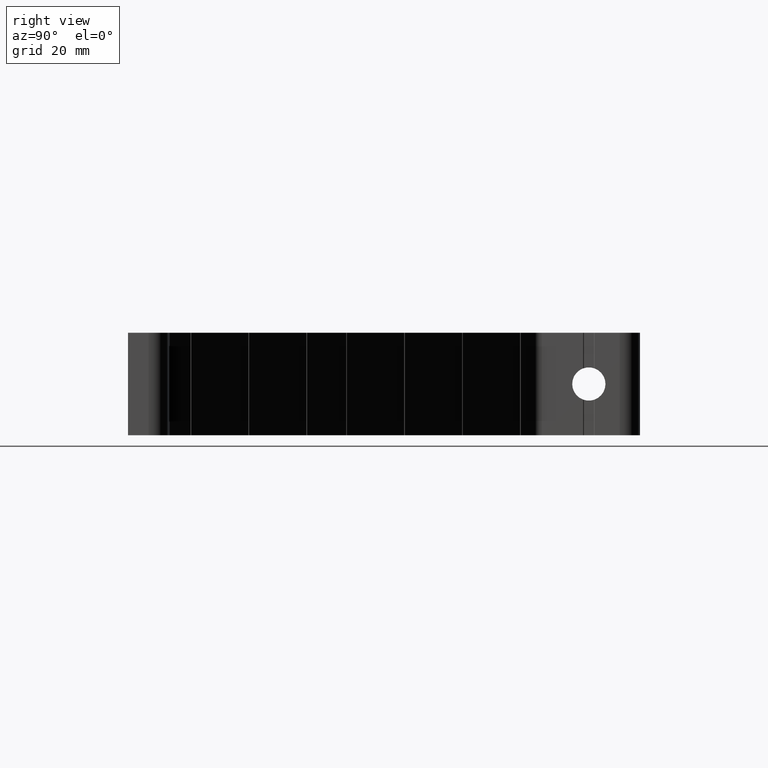
[diagram: clean part render]
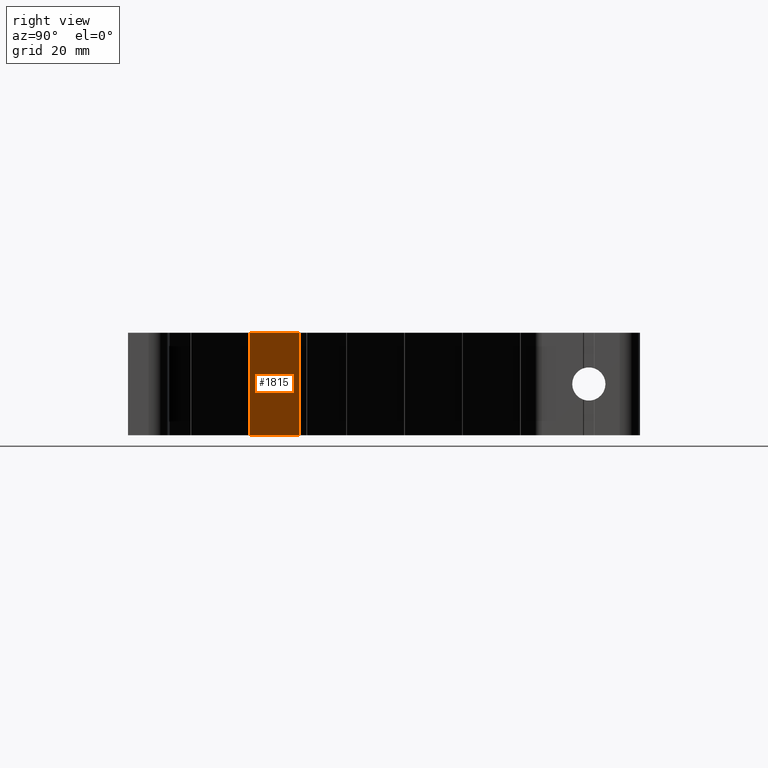
[diagram: same view with one face highlighted and labeled with its STEP entity id]
A machine part, right view. The second image highlights one B-rep face of the part: STEP entity #1815.
In plain terms, the highlighted planar face has unit normal (-0.7071, -0.7071, 0).
Its self-contained STEP definition (entity closure, byte-faithful):
#6 = CARTESIAN_POINT ( 'NONE',  ( 8.585786437626911300, 79.41421356237306400, 0.0000000000000000000 ) ) ;
#7 = DIRECTION ( 'NONE',  ( -0.7071067811865477900, 0.7071067811865473500, -0.0000000000000000000 ) ) ;
#388 = FACE_OUTER_BOUND ( 'NONE', #473, .T. ) ;
#445 = LINE ( 'NONE', #2075, #446 ) ;
#446 = VECTOR ( 'NONE', #2062, 1000.000000000000000 ) ;
#473 = EDGE_LOOP ( 'NONE', ( #2710, #2705, #2712, #2708 ) ) ;
#639 = AXIS2_PLACEMENT_3D ( 'NONE', #1762, #1758, #1757 ) ;
#688 = CARTESIAN_POINT ( 'NONE',  ( 64.33039914417834400, 23.66960085582164900, 0.0000000000000000000 ) ) ;
#877 = LINE ( 'NONE', #1409, #878 ) ;
#878 = VECTOR ( 'NONE', #1408, 1000.000000000000000 ) ;
#967 = LINE ( 'NONE', #1500, #969 ) ;
#969 = VECTOR ( 'NONE', #1596, 999.9999999999998900 ) ;
#1408 = DIRECTION ( 'NONE',  ( 0.0000000000000000000, 0.0000000000000000000, -1.000000000000000000 ) ) ;
#1409 = CARTESIAN_POINT ( 'NONE',  ( 64.33039914417835800, 23.66960085582163500, 20.00000000000000000 ) ) ;
#1488 = CARTESIAN_POINT ( 'NONE',  ( 64.33039914417835800, 23.66960085582163500, 20.00000000000000000 ) ) ;
#1500 = CARTESIAN_POINT ( 'NONE',  ( 8.585786437626911300, 79.41421356237306400, 20.00000000000000000 ) ) ;
#1596 = DIRECTION ( 'NONE',  ( -0.7071067811865477900, 0.7071067811865473500, -0.0000000000000000000 ) ) ;
#1757 = DIRECTION ( 'NONE',  ( 0.7071067811865477900, -0.7071067811865473500, 0.0000000000000000000 ) ) ;
#1758 = DIRECTION ( 'NONE',  ( -0.7071067811865473500, -0.7071067811865477900, 0.0000000000000000000 ) ) ;
#1762 = CARTESIAN_POINT ( 'NONE',  ( 8.585786437626911300, 79.41421356237306400, 20.00000000000000000 ) ) ;
#1815 = ADVANCED_FACE ( 'NONE', ( #388 ), #1824, .F. ) ;
#1824 = PLANE ( 'NONE',  #639 ) ;
#1865 = VERTEX_POINT ( 'NONE', #2767 ) ;
#1898 = VERTEX_POINT ( 'NONE', #688 ) ;
#1926 = VERTEX_POINT ( 'NONE', #2094 ) ;
#2012 = EDGE_CURVE ( 'NONE', #1926, #1865, #445, .T. ) ;
#2025 = EDGE_CURVE ( 'NONE', #2412, #1898, #877, .T. ) ;
#2062 = DIRECTION ( 'NONE',  ( 0.0000000000000000000, 0.0000000000000000000, 1.000000000000000000 ) ) ;
#2075 = CARTESIAN_POINT ( 'NONE',  ( 54.57232556380400000, 33.42767443619599300, 20.00000000000000000 ) ) ;
#2094 = CARTESIAN_POINT ( 'NONE',  ( 54.57232556380402100, 33.42767443619597900, 0.0000000000000000000 ) ) ;
#2181 = LINE ( 'NONE', #6, #2182 ) ;
#2182 = VECTOR ( 'NONE', #7, 999.9999999999998900 ) ;
#2412 = VERTEX_POINT ( 'NONE', #1488 ) ;
#2556 = EDGE_CURVE ( 'NONE', #2412, #1865, #967, .T. ) ;
#2580 = EDGE_CURVE ( 'NONE', #1898, #1926, #2181, .T. ) ;
#2705 = ORIENTED_EDGE ( 'NONE', *, *, #2025, .T. ) ;
#2708 = ORIENTED_EDGE ( 'NONE', *, *, #2012, .T. ) ;
#2710 = ORIENTED_EDGE ( 'NONE', *, *, #2556, .F. ) ;
#2712 = ORIENTED_EDGE ( 'NONE', *, *, #2580, .T. ) ;
#2767 = CARTESIAN_POINT ( 'NONE',  ( 54.57232556380400000, 33.42767443619599300, 20.00000000000000000 ) ) ;